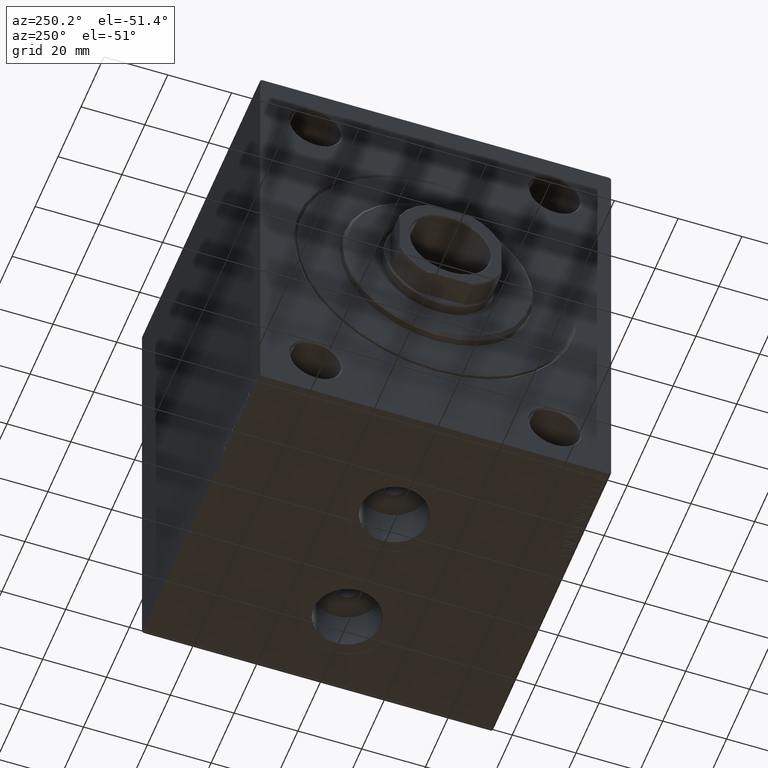
[diagram: clean part render]
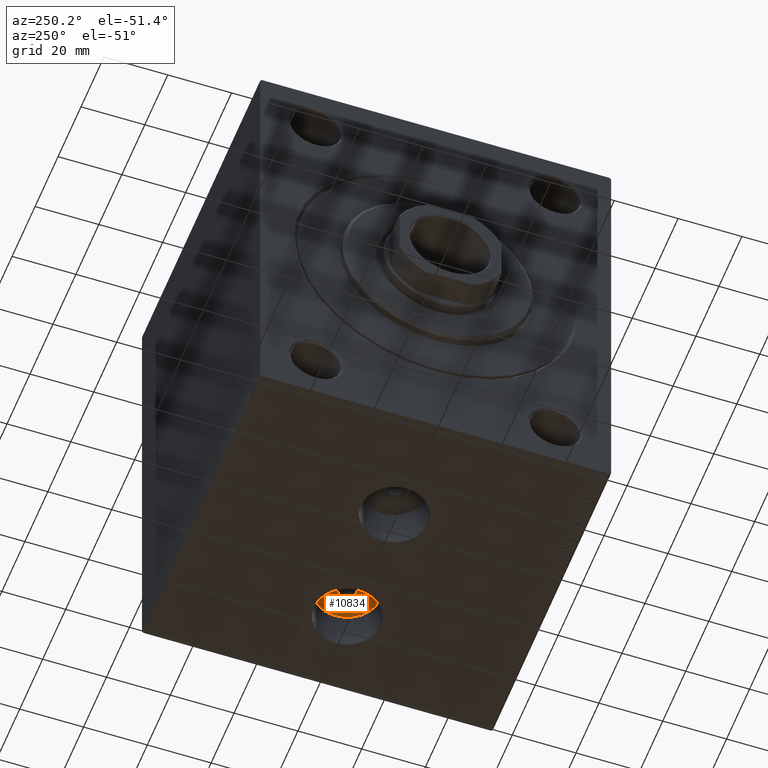
[diagram: same view with one face highlighted and labeled with its STEP entity id]
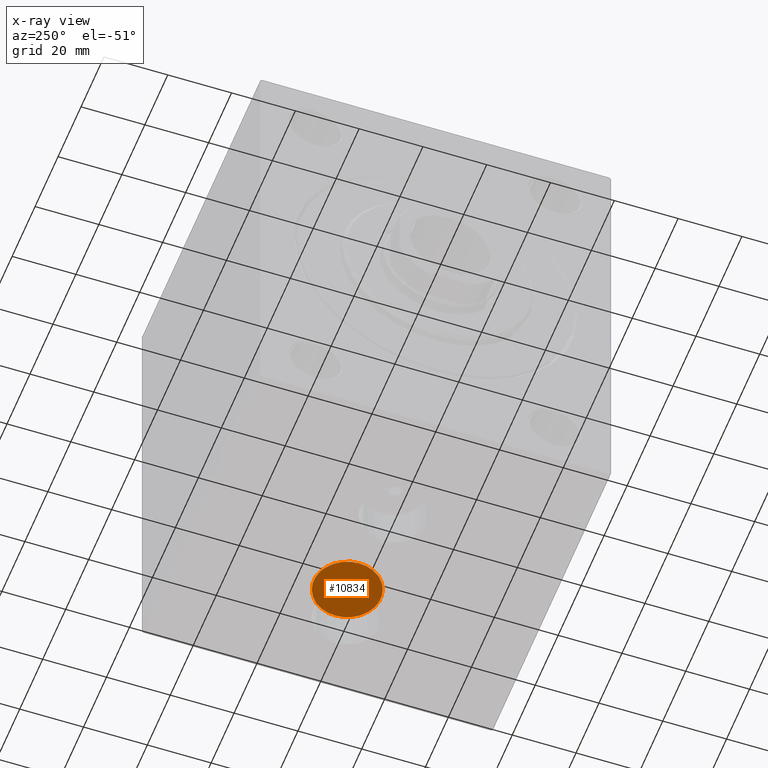
[diagram: x-ray of the same camera — body ghosted, the highlighted face saturated]
A machine part, auxiliary view. The second image highlights one B-rep face of the part: STEP entity #10834.
The next image is the same camera in x-ray: the body ghosted, the highlighted face saturated — about 0% of this face is hidden behind the body in this view.
In plain terms, the highlighted planar face has unit normal (0, 0, -1).
Its self-contained STEP definition (entity closure, byte-faithful):
#898 = CARTESIAN_POINT ( 'NONE',  ( 66.51999999999998181, 3.042716304786445633E-15, -57.00000000000000000 ) ) ;
#5237 = VERTEX_POINT ( 'NONE', #16369 ) ;
#5508 = ORIENTED_EDGE ( 'NONE', *, *, #41148, .F. ) ;
#6954 = CARTESIAN_POINT ( 'NONE',  ( 79.99999999999998579, 3.410110344530653444E-15, -57.00000000000000000 ) ) ;
#8076 = CARTESIAN_POINT ( 'NONE',  ( 73.99999999999998579, 3.042716304786445633E-15, -57.00000000000000000 ) ) ;
#8553 = DIRECTION ( 'NONE',  ( 0.000000000000000000, 0.000000000000000000, -1.000000000000000000 ) ) ;
#9055 = DIRECTION ( 'NONE',  ( 0.000000000000000000, 0.000000000000000000, -1.000000000000000000 ) ) ;
#9720 = ORIENTED_EDGE ( 'NONE', *, *, #11075, .T. ) ;
#9747 = FACE_BOUND ( 'NONE', #40569, .T. ) ;
#10834 = ADVANCED_FACE ( 'NONE', ( #9747, #27213 ), #12963, .T. ) ;
#11075 = EDGE_CURVE ( 'NONE', #17488, #5237, #36762, .T. ) ;
#12963 = PLANE ( 'NONE',  #27925 ) ;
#15069 = DIRECTION ( 'NONE',  ( -1.000000000000000000, 0.000000000000000000, 0.000000000000000000 ) ) ;
#15124 = ORIENTED_EDGE ( 'NONE', *, *, #20027, .F. ) ;
#15289 = CARTESIAN_POINT ( 'NONE',  ( 76.99999999999998579, 3.042716304786445633E-15, -57.00000000000000000 ) ) ;
#15384 = CIRCLE ( 'NONE', #30086, 3.000000000000002665 ) ;
#16369 = CARTESIAN_POINT ( 'NONE',  ( 87.47999999999998977, 4.326146150292871911E-15, -57.00000000000000000 ) ) ;
#17488 = VERTEX_POINT ( 'NONE', #898 ) ;
#17611 = CARTESIAN_POINT ( 'NONE',  ( 76.99999999999998579, 3.042716304786445633E-15, -57.00000000000000000 ) ) ;
#17902 = EDGE_CURVE ( 'NONE', #5237, #17488, #38098, .T. ) ;
#19877 = AXIS2_PLACEMENT_3D ( 'NONE', #40072, #8553, #32505 ) ;
#20027 = EDGE_CURVE ( 'NONE', #36243, #36147, #15384, .T. ) ;
#20103 = CARTESIAN_POINT ( 'NONE',  ( 0.000000000000000000, 0.000000000000000000, -57.00000000000000000 ) ) ;
#21914 = AXIS2_PLACEMENT_3D ( 'NONE', #37613, #26798, #43839 ) ;
#25192 = DIRECTION ( 'NONE',  ( 0.000000000000000000, 0.000000000000000000, -1.000000000000000000 ) ) ;
#26798 = DIRECTION ( 'NONE',  ( 0.000000000000000000, 0.000000000000000000, -1.000000000000000000 ) ) ;
#27213 = FACE_OUTER_BOUND ( 'NONE', #39907, .T. ) ;
#27572 = AXIS2_PLACEMENT_3D ( 'NONE', #15289, #25192, #39226 ) ;
#27925 = AXIS2_PLACEMENT_3D ( 'NONE', #20103, #9055, #30450 ) ;
#30086 = AXIS2_PLACEMENT_3D ( 'NONE', #17611, #35331, #15069 ) ;
#30450 = DIRECTION ( 'NONE',  ( -1.000000000000000000, 0.000000000000000000, -0.000000000000000000 ) ) ;
#32505 = DIRECTION ( 'NONE',  ( -1.000000000000000000, 0.000000000000000000, 0.000000000000000000 ) ) ;
#35331 = DIRECTION ( 'NONE',  ( 0.000000000000000000, 0.000000000000000000, -1.000000000000000000 ) ) ;
#35528 = ORIENTED_EDGE ( 'NONE', *, *, #17902, .T. ) ;
#36147 = VERTEX_POINT ( 'NONE', #6954 ) ;
#36243 = VERTEX_POINT ( 'NONE', #8076 ) ;
#36424 = CIRCLE ( 'NONE', #27572, 3.000000000000002665 ) ;
#36762 = CIRCLE ( 'NONE', #19877, 10.48000000000000398 ) ;
#37613 = CARTESIAN_POINT ( 'NONE',  ( 76.99999999999998579, 3.042716304786445633E-15, -57.00000000000000000 ) ) ;
#38098 = CIRCLE ( 'NONE', #21914, 10.48000000000000398 ) ;
#39226 = DIRECTION ( 'NONE',  ( -1.000000000000000000, 0.000000000000000000, 0.000000000000000000 ) ) ;
#39907 = EDGE_LOOP ( 'NONE', ( #9720, #35528 ) ) ;
#40072 = CARTESIAN_POINT ( 'NONE',  ( 76.99999999999998579, 3.042716304786445633E-15, -57.00000000000000000 ) ) ;
#40569 = EDGE_LOOP ( 'NONE', ( #15124, #5508 ) ) ;
#41148 = EDGE_CURVE ( 'NONE', #36147, #36243, #36424, .T. ) ;
#43839 = DIRECTION ( 'NONE',  ( -1.000000000000000000, 0.000000000000000000, 0.000000000000000000 ) ) ;